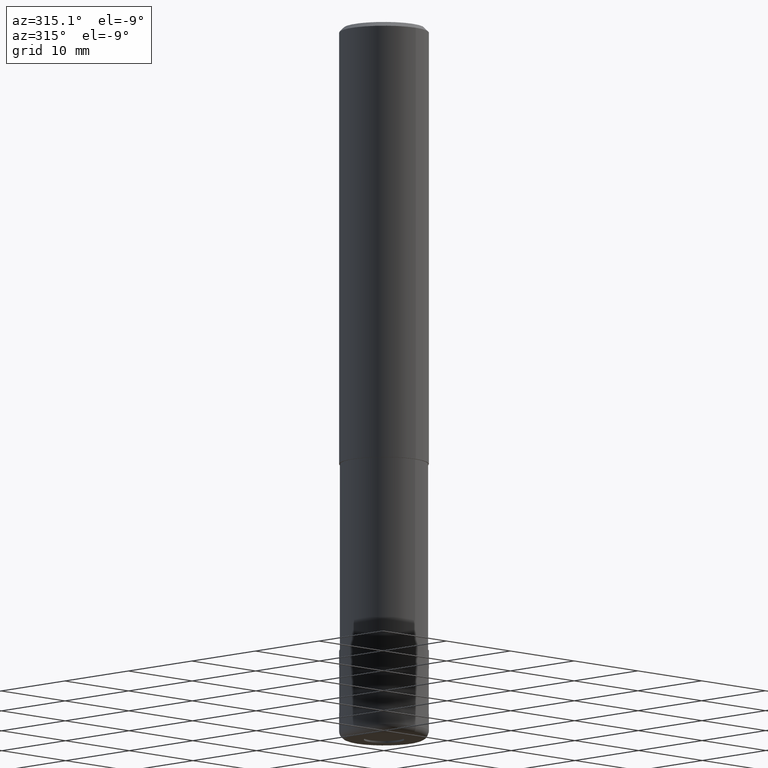
[diagram: clean part render]
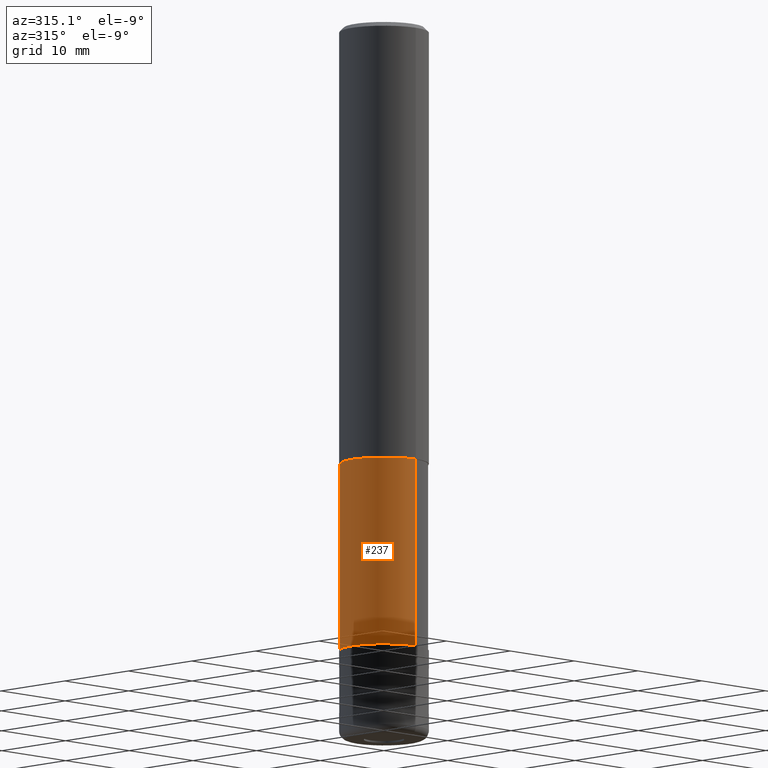
[diagram: same view with one face highlighted and labeled with its STEP entity id]
A machine part, auxiliary view. The second image highlights one B-rep face of the part: STEP entity #237.
In plain terms, the highlighted cylindrical surface (partial cylindrical patch) has radius 4.905 mm, axis along (-0, -0, 1).
Its self-contained STEP definition (entity closure, byte-faithful):
#117=EDGE_CURVE('',#225,#193,#304,.T.);
#133=VERTEX_POINT('',#322);
#153=EDGE_CURVE('',#225,#205,#347,.T.);
#193=VERTEX_POINT('',#395);
#205=VERTEX_POINT('',#409);
#211=EDGE_CURVE('',#205,#133,#415,.T.);
#225=VERTEX_POINT('',#432);
#237=ADVANCED_FACE('',(#444),#445,.T.);
#251=EDGE_CURVE('',#133,#193,#461,.T.);
#304=CIRCLE('',#508,4.90495);
#322=CARTESIAN_POINT('',(0.0,4.90495,-49.0));
#347=LINE('',#561,#562);
#395=CARTESIAN_POINT('',(0.0,4.90495,-70.0));
#409=CARTESIAN_POINT('',(6.00663293518107E-016,-4.90495,-49.0));
#415=CIRCLE('',#645,4.90495);
#432=CARTESIAN_POINT('',(6.00663293518107E-016,-4.90495,-70.0));
#444=FACE_OUTER_BOUND('',#679,.T.);
#445=CYLINDRICAL_SURFACE('',#680,4.90495);
#461=LINE('',#702,#703);
#508=AXIS2_PLACEMENT_3D('',#747,#748,#749);
#561=CARTESIAN_POINT('',(6.00663293518107E-016,-4.90495,-59.5));
#562=VECTOR('',#816,1.0);
#645=AXIS2_PLACEMENT_3D('',#908,#909,#910);
#679=EDGE_LOOP('',(#947,#948,#949,#950));
#680=AXIS2_PLACEMENT_3D('',#951,#952,#953);
#702=CARTESIAN_POINT('',(-6.00663293518107E-016,4.90495,-59.5));
#703=VECTOR('',#975,1.0);
#747=CARTESIAN_POINT('',(0.0,0.0,-70.0));
#748=DIRECTION('',(0.0,0.0,-1.0));
#749=DIRECTION('',(0.0,1.0,0.0));
#816=DIRECTION('',(-0.0,-0.0,1.0));
#908=CARTESIAN_POINT('',(0.0,0.0,-49.0));
#909=DIRECTION('',(0.0,0.0,-1.0));
#910=DIRECTION('',(0.0,1.0,0.0));
#947=ORIENTED_EDGE('',*,*,#251,.T.);
#948=ORIENTED_EDGE('',*,*,#117,.F.);
#949=ORIENTED_EDGE('',*,*,#153,.T.);
#950=ORIENTED_EDGE('',*,*,#211,.T.);
#951=CARTESIAN_POINT('',(0.0,0.0,-59.5));
#952=DIRECTION('',(-0.0,-0.0,1.0));
#953=DIRECTION('',(0.0,1.0,0.0));
#975=DIRECTION('',(0.0,0.0,-1.0));